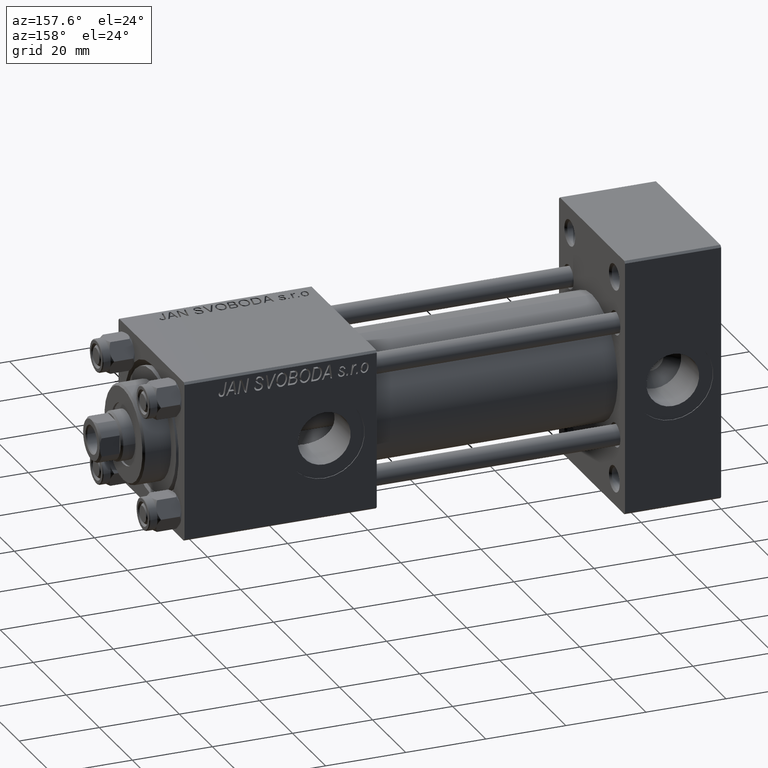
[diagram: clean part render]
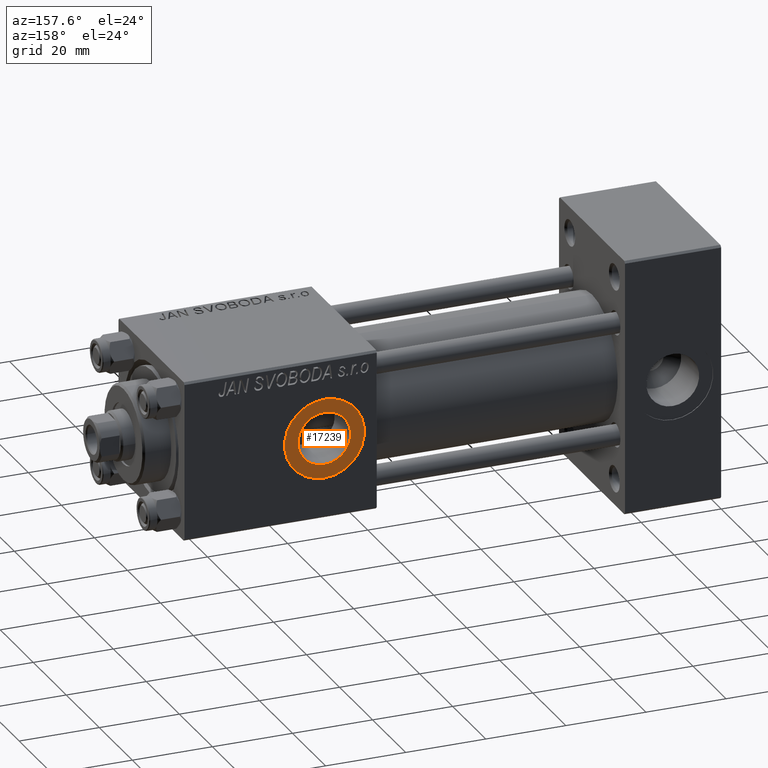
[diagram: same view with one face highlighted and labeled with its STEP entity id]
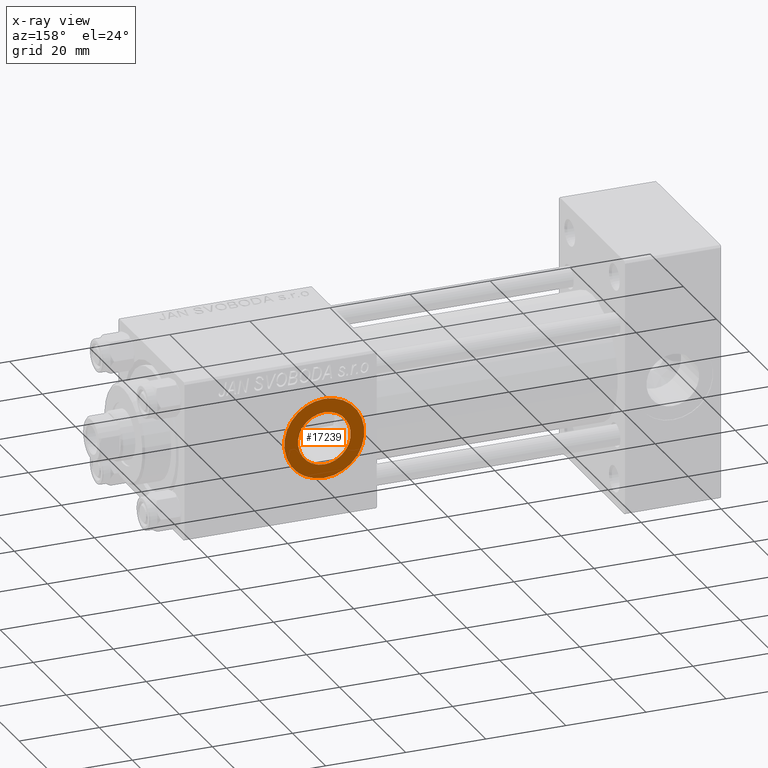
[diagram: x-ray of the same camera — body ghosted, the highlighted face saturated]
A machine part, auxiliary view. The second image highlights one B-rep face of the part: STEP entity #17239.
The next image is the same camera in x-ray: the body ghosted, the highlighted face saturated — about 0% of this face is hidden behind the body in this view.
In plain terms, the highlighted planar face has unit normal (0, 1, 0).
Its self-contained STEP definition (entity closure, byte-faithful):
#365 = DIRECTION ( 'NONE',  ( 0.000000000000000000, 1.000000000000000000, 0.000000000000000000 ) ) ;
#577 = ORIENTED_EDGE ( 'NONE', *, *, #7041, .T. ) ;
#645 = CARTESIAN_POINT ( 'NONE',  ( 98.99999999999998579, 19.79999999999999716, 0.000000000000000000 ) ) ;
#1591 = FACE_OUTER_BOUND ( 'NONE', #46539, .T. ) ;
#2662 = AXIS2_PLACEMENT_3D ( 'NONE', #17248, #36831, #21170 ) ;
#4218 = EDGE_CURVE ( 'NONE', #20191, #34839, #44847, .T. ) ;
#5522 = VERTEX_POINT ( 'NONE', #15630 ) ;
#7041 = EDGE_CURVE ( 'NONE', #34839, #20191, #39944, .T. ) ;
#8554 = DIRECTION ( 'NONE',  ( 0.000000000000000000, 0.000000000000000000, 1.000000000000000000 ) ) ;
#8918 = VERTEX_POINT ( 'NONE', #10386 ) ;
#10386 = CARTESIAN_POINT ( 'NONE',  ( 98.99999999999998579, 19.79999999999999716, 6.580000000000002736 ) ) ;
#10468 = ORIENTED_EDGE ( 'NONE', *, *, #37466, .F. ) ;
#12355 = CARTESIAN_POINT ( 'NONE',  ( 98.99999999999998579, 19.79999999999999716, 0.000000000000000000 ) ) ;
#12833 = FACE_BOUND ( 'NONE', #29575, .T. ) ;
#15624 = EDGE_CURVE ( 'NONE', #8918, #5522, #26061, .T. ) ;
#15630 = CARTESIAN_POINT ( 'NONE',  ( 98.99999999999998579, 19.79999999999999716, -6.580000000000002736 ) ) ;
#15746 = DIRECTION ( 'NONE',  ( 0.000000000000000000, 1.000000000000000000, 0.000000000000000000 ) ) ;
#16265 = CARTESIAN_POINT ( 'NONE',  ( 98.99999999999998579, 19.79999999999999716, 0.000000000000000000 ) ) ;
#16267 = DIRECTION ( 'NONE',  ( 0.000000000000000000, 0.000000000000000000, 1.000000000000000000 ) ) ;
#17239 = ADVANCED_FACE ( 'NONE', ( #12833, #1591 ), #37090, .T. ) ;
#17248 = CARTESIAN_POINT ( 'NONE',  ( 98.99999999999998579, 19.79999999999999716, 0.000000000000000000 ) ) ;
#18066 = CARTESIAN_POINT ( 'NONE',  ( 98.99999999999998579, 19.79999999999999716, 9.999999999999994671 ) ) ;
#19361 = CARTESIAN_POINT ( 'NONE',  ( 98.99999999999998579, 19.79999999999999716, -9.999999999999994671 ) ) ;
#20191 = VERTEX_POINT ( 'NONE', #18066 ) ;
#20195 = AXIS2_PLACEMENT_3D ( 'NONE', #16265, #15746, #35586 ) ;
#21170 = DIRECTION ( 'NONE',  ( 0.000000000000000000, -0.000000000000000000, 1.000000000000000000 ) ) ;
#22435 = AXIS2_PLACEMENT_3D ( 'NONE', #645, #32195, #29075 ) ;
#23433 = CARTESIAN_POINT ( 'NONE',  ( 98.99999999999998579, 19.79999999999999716, 0.000000000000000000 ) ) ;
#26061 = CIRCLE ( 'NONE', #20195, 6.580000000000002736 ) ;
#29075 = DIRECTION ( 'NONE',  ( 0.000000000000000000, 0.000000000000000000, 1.000000000000000000 ) ) ;
#29575 = EDGE_LOOP ( 'NONE', ( #48781, #10468 ) ) ;
#32195 = DIRECTION ( 'NONE',  ( 0.000000000000000000, 1.000000000000000000, 0.000000000000000000 ) ) ;
#32216 = CIRCLE ( 'NONE', #40583, 6.580000000000002736 ) ;
#34839 = VERTEX_POINT ( 'NONE', #19361 ) ;
#35586 = DIRECTION ( 'NONE',  ( 0.000000000000000000, 0.000000000000000000, 1.000000000000000000 ) ) ;
#36831 = DIRECTION ( 'NONE',  ( 0.000000000000000000, 1.000000000000000000, 0.000000000000000000 ) ) ;
#37090 = PLANE ( 'NONE',  #2662 ) ;
#37466 = EDGE_CURVE ( 'NONE', #5522, #8918, #32216, .T. ) ;
#39944 = CIRCLE ( 'NONE', #22435, 9.999999999999994671 ) ;
#40583 = AXIS2_PLACEMENT_3D ( 'NONE', #23433, #47191, #8554 ) ;
#44847 = CIRCLE ( 'NONE', #45782, 9.999999999999994671 ) ;
#45782 = AXIS2_PLACEMENT_3D ( 'NONE', #12355, #365, #16267 ) ;
#46539 = EDGE_LOOP ( 'NONE', ( #46684, #577 ) ) ;
#46684 = ORIENTED_EDGE ( 'NONE', *, *, #4218, .T. ) ;
#47191 = DIRECTION ( 'NONE',  ( 0.000000000000000000, 1.000000000000000000, 0.000000000000000000 ) ) ;
#48781 = ORIENTED_EDGE ( 'NONE', *, *, #15624, .F. ) ;